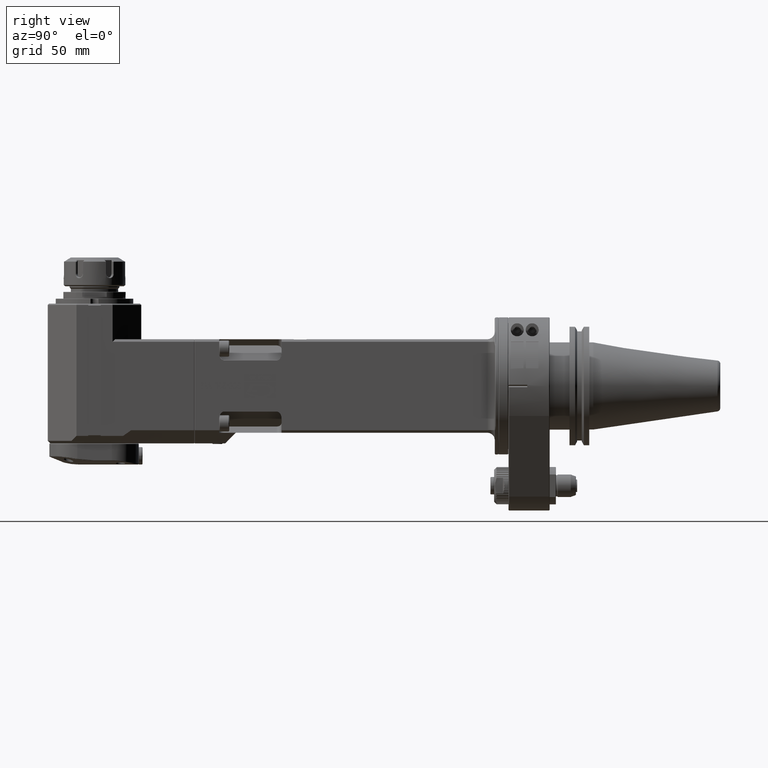
[diagram: clean part render]
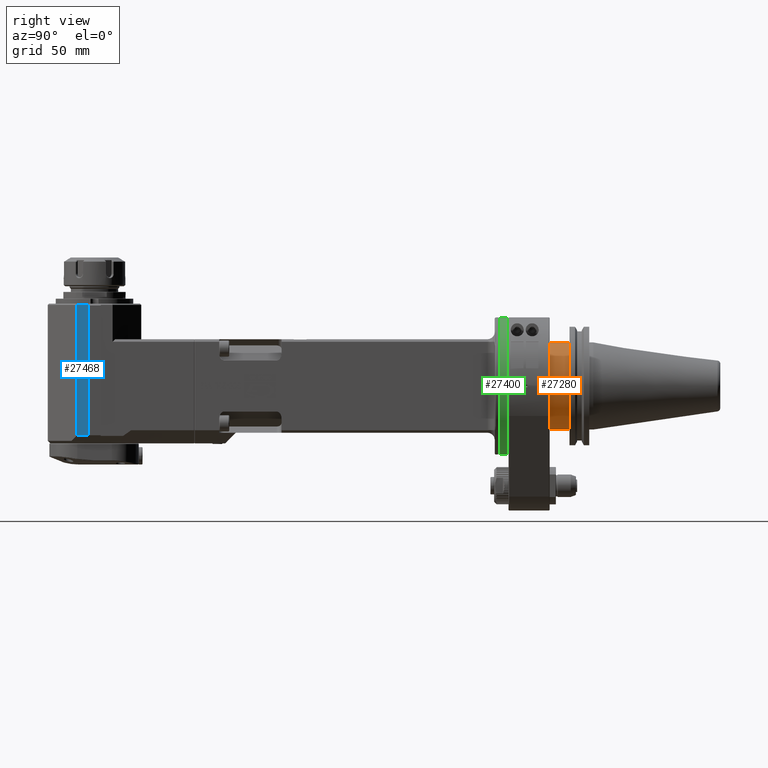
[diagram: same view with three faces highlighted in distinct colors, each labeled with its STEP entity id]
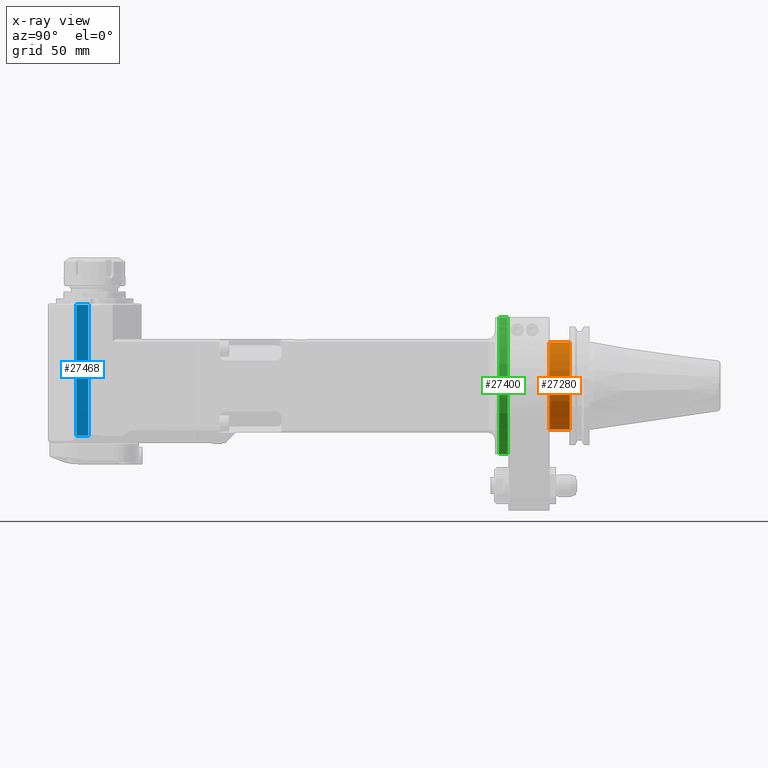
[diagram: x-ray of the same camera — body ghosted, the three highlighted faces saturated]
A machine part, right view with three faces highlighted in distinct colors.
The next image is the same camera in x-ray (body ghosted, the three faces saturated) — at least one of them is partly hidden behind the body in this view.
Their STEP definitions:

[orange] entity #27280 — the highlighted cylindrical surface (bore or boss wall) has radius 35 mm, axis along (0, -1, 0).
#2086=CIRCLE('',#29332,35.);
#2099=CIRCLE('',#29363,35.);
#2900=CYLINDRICAL_SURFACE('',#29362,35.);
#3511=FACE_OUTER_BOUND('',#5168,.T.);
#5168=EDGE_LOOP('',(#20078,#20079,#20080,#20081));
#7191=LINE('',#42035,#9388);
#9388=VECTOR('',#33513,35.);
#11644=VERTEX_POINT('',#41965);
#11657=VERTEX_POINT('',#42033);
#14745=EDGE_CURVE('',#11644,#11644,#2086,.T.);
#14774=EDGE_CURVE('',#11657,#11657,#2099,.T.);
#14775=EDGE_CURVE('',#11657,#11644,#7191,.T.);
#20078=ORIENTED_EDGE('',*,*,#14774,.T.);
#20079=ORIENTED_EDGE('',*,*,#14775,.T.);
#20080=ORIENTED_EDGE('',*,*,#14745,.T.);
#20081=ORIENTED_EDGE('',*,*,#14775,.F.);
#27280=ADVANCED_FACE('',(#3511),#2900,.T.);
#29332=AXIS2_PLACEMENT_3D('',#41966,#33437,#33438);
#29362=AXIS2_PLACEMENT_3D('',#42032,#33509,#33510);
#29363=AXIS2_PLACEMENT_3D('',#42034,#33511,#33512);
#33437=DIRECTION('center_axis',(0.,-1.,0.));
#33438=DIRECTION('ref_axis',(0.,0.,1.));
#33509=DIRECTION('center_axis',(0.,-1.,0.));
#33510=DIRECTION('ref_axis',(0.,0.,1.));
#33511=DIRECTION('center_axis',(0.,1.,0.));
#33512=DIRECTION('ref_axis',(0.,0.,-1.));
#33513=DIRECTION('',(0.,1.,0.));
#41965=CARTESIAN_POINT('',(4.28626379701574E-15,48.9,-35.));
#41966=CARTESIAN_POINT('Origin',(0.,48.9,-2.65337952111E-15));
#42032=CARTESIAN_POINT('Origin',(0.,49.695,-2.65337952111E-15));
#42033=CARTESIAN_POINT('',(4.28626379701574E-15,33.,-35.));
#42034=CARTESIAN_POINT('Origin',(0.,33.,-2.65337952111E-15));
#42035=CARTESIAN_POINT('',(4.28626379701574E-15,49.695,-35.));

[blue] entity #27468 — the highlighted planar face has unit normal (1, 0, -0).
#3699=FACE_OUTER_BOUND('',#5398,.T.);
#5398=EDGE_LOOP('',(#20974,#20975,#20976,#20977));
#7338=LINE('',#44573,#9535);
#7339=LINE('',#44576,#9536);
#7345=LINE('',#44588,#9542);
#7409=LINE('',#44720,#9606);
#9535=VECTOR('',#34392,9.5);
#9536=VECTOR('',#34395,105.);
#9542=VECTOR('',#34407,9.5);
#9606=VECTOR('',#34527,105.);
#11967=VERTEX_POINT('',#44562);
#11971=VERTEX_POINT('',#44571);
#11972=VERTEX_POINT('',#44575);
#11975=VERTEX_POINT('',#44587);
#15218=EDGE_CURVE('',#11971,#11967,#7338,.T.);
#15219=EDGE_CURVE('',#11972,#11967,#7339,.T.);
#15225=EDGE_CURVE('',#11972,#11975,#7345,.T.);
#15292=EDGE_CURVE('',#11971,#11975,#7409,.T.);
#20974=ORIENTED_EDGE('',*,*,#15218,.F.);
#20975=ORIENTED_EDGE('',*,*,#15292,.T.);
#20976=ORIENTED_EDGE('',*,*,#15225,.F.);
#20977=ORIENTED_EDGE('',*,*,#15219,.T.);
#26446=PLANE('',#29762);
#27468=ADVANCED_FACE('',(#3699),#26446,.T.);
#29762=AXIS2_PLACEMENT_3D('',#44721,#34528,#34529);
#34392=DIRECTION('',(0.,1.,0.));
#34395=DIRECTION('',(0.,0.,1.));
#34407=DIRECTION('',(0.,-1.,0.));
#34527=DIRECTION('',(0.,0.,-1.));
#34528=DIRECTION('center_axis',(1.,0.,0.));
#34529=DIRECTION('ref_axis',(0.,1.,0.));
#44562=CARTESIAN_POINT('',(37.5,-337.,65.));
#44571=CARTESIAN_POINT('',(37.5,-346.5,65.));
#44573=CARTESIAN_POINT('',(37.5,-346.5,65.));
#44575=CARTESIAN_POINT('',(37.5,-337.,-40.));
#44576=CARTESIAN_POINT('',(37.5,-337.,-40.));
#44587=CARTESIAN_POINT('',(37.5,-346.5,-40.));
#44588=CARTESIAN_POINT('',(37.5,-337.,-40.));
#44720=CARTESIAN_POINT('',(37.5,-346.5,65.));
#44721=CARTESIAN_POINT('Origin',(37.5,-369.5,-46.));

[green] entity #27400 — the highlighted cylindrical surface (bore or boss wall) has radius 55 mm, axis along (-0, 1, -0).
#945=B_SPLINE_CURVE_WITH_KNOTS('',3,(#43049,#43050,#43051,#43052,#43053,
#43054,#43055,#43056,#43057,#43058,#43059,#43060,#43061,#43062,#43063,#43064,
#43065,#43066,#43067,#43068,#43069,#43070),.UNSPECIFIED.,.F.,.F.,(4,2,2,
2,2,2,2,2,2,2,4),(4.76471714873472E-5,0.0575495206266228,0.132747012988606,
0.200670398446897,0.32942166189529,0.449239609115883,0.568898416558395,
0.690618548091828,0.751157154555069,0.818555364966501,0.870179637722253),
 .UNSPECIFIED.);
#946=B_SPLINE_CURVE_WITH_KNOTS('',3,(#43076,#43077,#43078,#43079,#43080,
#43081,#43082,#43083,#43084,#43085,#43086,#43087,#43088,#43089,#43090,#43091,
#43092,#43093,#43094,#43095,#43096,#43097),.UNSPECIFIED.,.F.,.F.,(4,2,2,
2,2,2,2,2,2,2,4),(3.95623182436848E-5,0.0393003030552786,0.0797638895922339,
0.179546209921248,0.343477321043122,0.506101937920066,0.668643096069911,
0.832623021499945,0.958288517259693,1.01388721498904,1.06788993591616),
 .UNSPECIFIED.);
#2281=CIRCLE('',#29668,55.);
#2282=CIRCLE('',#29669,55.);
#2283=CIRCLE('',#29671,55.);
#2284=CIRCLE('',#29672,55.);
#2942=CYLINDRICAL_SURFACE('',#29670,55.);
#3631=FACE_OUTER_BOUND('',#5326,.T.);
#5326=EDGE_LOOP('',(#20588,#20589,#20590,#20591,#20592,#20593,#20594,#20595,
#20596,#20597));
#7257=LINE('',#43047,#9454);
#7258=LINE('',#43072,#9455);
#9454=VECTOR('',#34193,55.);
#9455=VECTOR('',#34194,55.);
#11844=VERTEX_POINT('',#43040);
#11845=VERTEX_POINT('',#43041);
#11846=VERTEX_POINT('',#43046);
#11847=VERTEX_POINT('',#43048);
#11848=VERTEX_POINT('',#43071);
#11849=VERTEX_POINT('',#43073);
#15050=EDGE_CURVE('',#11844,#11845,#2281,.T.);
#15052=EDGE_CURVE('',#11845,#11844,#2282,.T.);
#15053=EDGE_CURVE('',#11844,#11846,#7257,.T.);
#15054=EDGE_CURVE('',#11846,#11847,#945,.T.);
#15055=EDGE_CURVE('',#11847,#11848,#7258,.T.);
#15056=EDGE_CURVE('',#11848,#11849,#2283,.T.);
#15057=EDGE_CURVE('',#11849,#11848,#2284,.T.);
#15058=EDGE_CURVE('',#11847,#11846,#946,.T.);
#20588=ORIENTED_EDGE('',*,*,#15050,.F.);
#20589=ORIENTED_EDGE('',*,*,#15053,.T.);
#20590=ORIENTED_EDGE('',*,*,#15054,.T.);
#20591=ORIENTED_EDGE('',*,*,#15055,.T.);
#20592=ORIENTED_EDGE('',*,*,#15056,.T.);
#20593=ORIENTED_EDGE('',*,*,#15057,.T.);
#20594=ORIENTED_EDGE('',*,*,#15055,.F.);
#20595=ORIENTED_EDGE('',*,*,#15058,.T.);
#20596=ORIENTED_EDGE('',*,*,#15053,.F.);
#20597=ORIENTED_EDGE('',*,*,#15052,.F.);
#27400=ADVANCED_FACE('',(#3631),#2942,.T.);
#29668=AXIS2_PLACEMENT_3D('',#43042,#34186,#34187);
#29669=AXIS2_PLACEMENT_3D('',#43044,#34189,#34190);
#29670=AXIS2_PLACEMENT_3D('',#43045,#34191,#34192);
#29671=AXIS2_PLACEMENT_3D('',#43074,#34195,#34196);
#29672=AXIS2_PLACEMENT_3D('',#43075,#34197,#34198);
#34186=DIRECTION('center_axis',(0.,1.,0.));
#34187=DIRECTION('ref_axis',(1.,0.,0.));
#34189=DIRECTION('center_axis',(0.,1.,0.));
#34190=DIRECTION('ref_axis',(1.,0.,0.));
#34191=DIRECTION('center_axis',(0.,1.,0.));
#34192=DIRECTION('ref_axis',(1.,0.,0.));
#34193=DIRECTION('',(0.,-1.,0.));
#34194=DIRECTION('',(0.,-1.,0.));
#34195=DIRECTION('center_axis',(0.,1.,0.));
#34196=DIRECTION('ref_axis',(-1.,0.,0.));
#34197=DIRECTION('center_axis',(0.,1.,0.));
#34198=DIRECTION('ref_axis',(-1.,0.,0.));
#43040=CARTESIAN_POINT('',(-55.,-0.600006121445,0.));
#43041=CARTESIAN_POINT('',(-1.1021976036171E-13,-0.600006121445647,54.9999999999997));
#43042=CARTESIAN_POINT('Origin',(0.,-0.600006121445,0.));
#43044=CARTESIAN_POINT('Origin',(0.,-0.600006121445,0.));
#43045=CARTESIAN_POINT('Origin',(0.,-8.395,0.));
#43046=CARTESIAN_POINT('',(-55.,-2.1496767993369,-6.95333193009575E-7));
#43047=CARTESIAN_POINT('',(-55.,-8.395,6.73555739531044E-15));
#43048=CARTESIAN_POINT('',(-54.9998972986269,-6.05039023039002,3.31134131437887E-7));
#43049=CARTESIAN_POINT('Ctrl Pts',(-55.,-2.15043295591705,-2.204277231143E-7));
#43050=CARTESIAN_POINT('Ctrl Pts',(-55.0000000007682,-2.15033177080555,
0.191669917447562));
#43051=CARTESIAN_POINT('Ctrl Pts',(-54.9989821835726,-2.1775000992026,0.381698175752677));
#43052=CARTESIAN_POINT('Ctrl Pts',(-54.9946251913639,-2.3044648179193,0.805538723932873));
#43053=CARTESIAN_POINT('Ctrl Pts',(-54.9912983291092,-2.40879092953459,
0.98515658633099));
#43054=CARTESIAN_POINT('Ctrl Pts',(-54.9868837551191,-2.55735827651968,
1.20564031767378));
#43055=CARTESIAN_POINT('Ctrl Pts',(-54.9846298038444,-2.63754215816085,
1.30328038037547));
#43056=CARTESIAN_POINT('Ctrl Pts',(-54.9780481675562,-2.89845061562636,
1.56306099586448));
#43057=CARTESIAN_POINT('Ctrl Pts',(-54.9734503365586,-3.11123494489766,
1.71185359171238));
#43058=CARTESIAN_POINT('Ctrl Pts',(-54.9668642322301,-3.59691730738995,
1.91130579665342));
#43059=CARTESIAN_POINT('Ctrl Pts',(-54.9650468361354,-3.84661919770437,
1.96051685352228));
#43060=CARTESIAN_POINT('Ctrl Pts',(-54.9650341909439,-4.35030599477977,
1.9608713419751));
#43061=CARTESIAN_POINT('Ctrl Pts',(-54.9668340850712,-4.59976794001186,
1.91214405597903));
#43062=CARTESIAN_POINT('Ctrl Pts',(-54.9732052350262,-5.07178568265306,
1.71935109189998));
#43063=CARTESIAN_POINT('Ctrl Pts',(-54.9777051242912,-5.28756760072725,
1.57620376164881));
#43064=CARTESIAN_POINT('Ctrl Pts',(-54.9845546959014,-5.55967232039021,
1.30643756135852));
#43065=CARTESIAN_POINT('Ctrl Pts',(-54.9868150705991,-5.64024578872759,
1.20876622795691));
#43066=CARTESIAN_POINT('Ctrl Pts',(-54.9912540894191,-5.78988204911337,
0.98769556060571));
#43067=CARTESIAN_POINT('Ctrl Pts',(-54.9945843872334,-5.89424932769843,
0.808424078081007));
#43068=CARTESIAN_POINT('Ctrl Pts',(-54.9989704911554,-6.02204571898205,
0.383655861377801));
#43069=CARTESIAN_POINT('Ctrl Pts',(-55.0000000035121,-6.04982188134396,
0.192300745808517));
#43070=CARTESIAN_POINT('Ctrl Pts',(-55.,-6.04979649265066,-1.0044925758193E-6));
#43071=CARTESIAN_POINT('',(-55.,-7.499994945197,6.73555739531044E-15));
#43072=CARTESIAN_POINT('',(-55.,-8.395,6.73555739531044E-15));
#43073=CARTESIAN_POINT('',(-2.61374932143589E-13,-7.49999494519905,55.0000000000024));
#43074=CARTESIAN_POINT('Origin',(0.,-7.499994945197,0.));
#43075=CARTESIAN_POINT('Origin',(0.,-7.499994945197,0.));
#43076=CARTESIAN_POINT('Ctrl Pts',(-55.,-6.05074996223013,-1.41378930659797E-6));
#43077=CARTESIAN_POINT('Ctrl Pts',(-54.9999999966359,-6.05065678949561,
-0.130871370752745));
#43078=CARTESIAN_POINT('Ctrl Pts',(-54.9995249148137,-6.03699916567496,
-0.262155302159338));
#43079=CARTESIAN_POINT('Ctrl Pts',(-54.9976749727376,-5.98389664337348,
-0.522721983869541));
#43080=CARTESIAN_POINT('Ctrl Pts',(-54.9962694452945,-5.94353590086946,
-0.652500242671689));
#43081=CARTESIAN_POINT('Ctrl Pts',(-54.9901941550816,-5.75942601239726,
-1.08270609739109));
#43082=CARTESIAN_POINT('Ctrl Pts',(-54.9851372458771,-5.58235002074472,
-1.28323120355316));
#43083=CARTESIAN_POINT('Ctrl Pts',(-54.9778059274816,-5.29212019868156,
-1.57265542125806));
#43084=CARTESIAN_POINT('Ctrl Pts',(-54.9733030641621,-5.0770182808479,-1.71624522125126));
#43085=CARTESIAN_POINT('Ctrl Pts',(-54.9668837169452,-4.60556155724663,
-1.91078264487714));
#43086=CARTESIAN_POINT('Ctrl Pts',(-54.9650402752197,-4.3541543298354,-1.96070077916828));
#43087=CARTESIAN_POINT('Ctrl Pts',(-54.9650434243085,-3.84524366973862,
-1.96061249762096));
#43088=CARTESIAN_POINT('Ctrl Pts',(-54.9668877901888,-3.59426480815828,
-1.9106584706565));
#43089=CARTESIAN_POINT('Ctrl Pts',(-54.9733006569255,-3.12312898141284,
-1.71631891376183));
#43090=CARTESIAN_POINT('Ctrl Pts',(-54.9778021909235,-2.90793586606688,
-1.57284059570761));
#43091=CARTESIAN_POINT('Ctrl Pts',(-54.9858716415503,-2.58866110526928,
-1.25420997152034));
#43092=CARTESIAN_POINT('Ctrl Pts',(-54.9906573721229,-2.42639828098734,
-1.05141813809488));
#43093=CARTESIAN_POINT('Ctrl Pts',(-54.996310279977,-2.25532500625672,-0.648922265749841));
#43094=CARTESIAN_POINT('Ctrl Pts',(-54.9977000595603,-2.21541646085336,
-0.519866944369419));
#43095=CARTESIAN_POINT('Ctrl Pts',(-54.9995298634374,-2.16283504596695,
-0.260788869954106));
#43096=CARTESIAN_POINT('Ctrl Pts',(-54.9999999976026,-2.14926553454831,
-0.130172444448944));
#43097=CARTESIAN_POINT('Ctrl Pts',(-55.,-2.14917110805524,-1.01293349173692E-6));